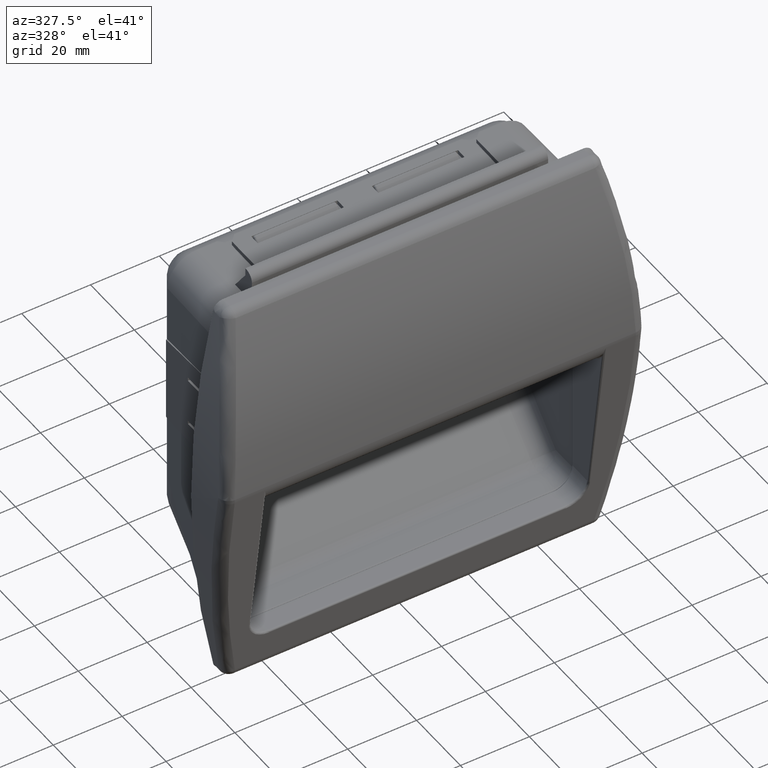
[diagram: clean part render]
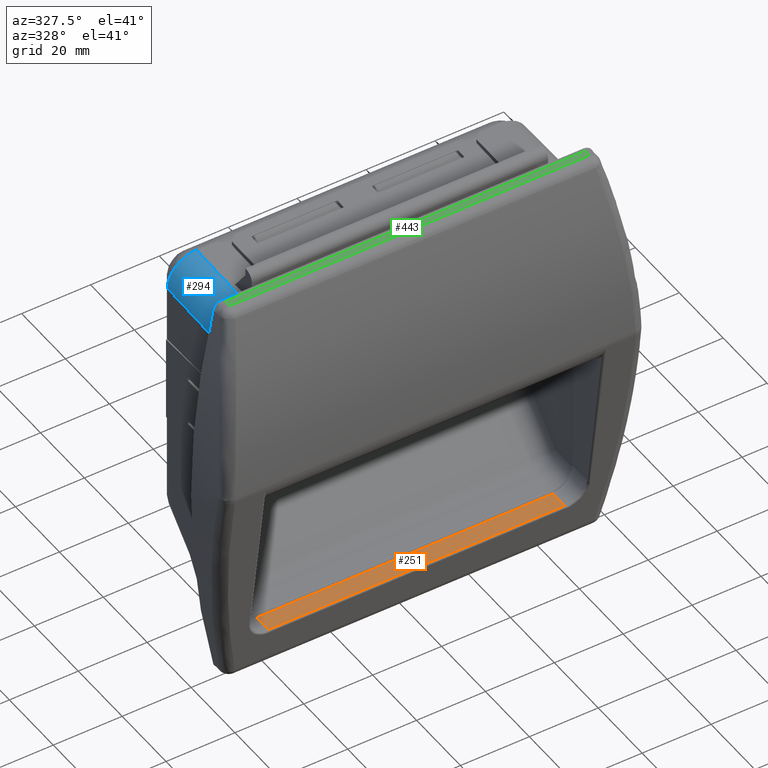
[diagram: same view with three faces highlighted in distinct colors, each labeled with its STEP entity id]
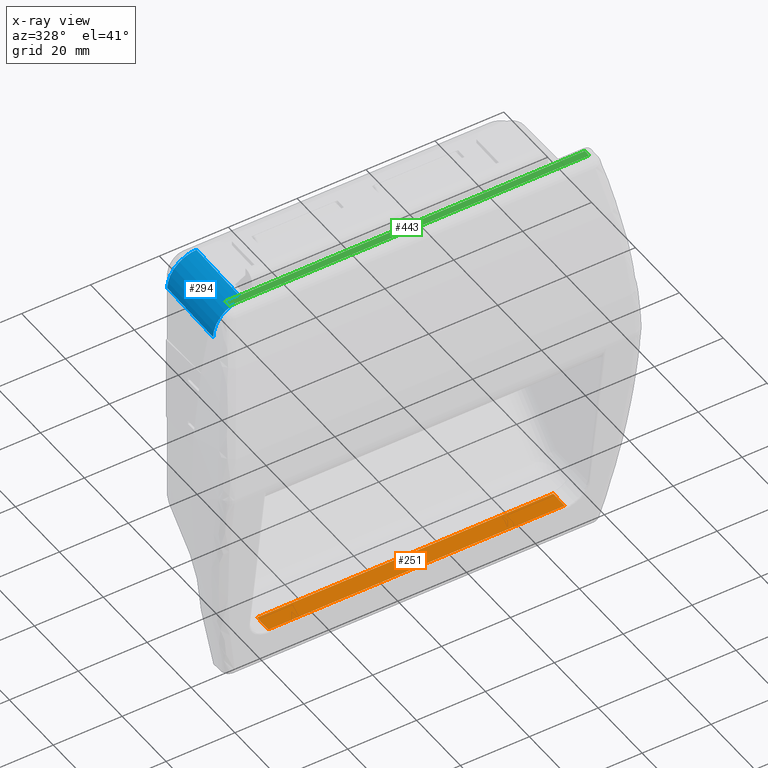
[diagram: x-ray of the same camera — body ghosted, the three highlighted faces saturated]
A machine part, auxiliary view with three faces highlighted in distinct colors.
The next image is the same camera in x-ray (body ghosted, the three faces saturated) — at least one of them is partly hidden behind the body in this view.
Their STEP definitions:

[orange] entity #251 — the highlighted planar face has unit normal (0, -0.0175, 0.9998).
#251=ADVANCED_FACE('',(#1873),#1872,.T.);
#1872=PLANE('',#9851);
#1873=FACE_OUTER_BOUND('',#9852,.T.);
#9848=CARTESIAN_POINT('',(-2.50100344491E+02,-6.71121424564E+00,-4.74978106149E+01));
#9849=DIRECTION('',(0.00000000000E+00,-1.74524064396E-02,9.99847695156E-01));
#9850=DIRECTION('',(1.00000000000E+00,0.00000000000E+00,0.00000000000E+00));
#9851=AXIS2_PLACEMENT_3D('',#9848,#9849,#9850);
#9852=EDGE_LOOP('',(#16798,#16799,#16800,#16801));
#16798=ORIENTED_EDGE('',*,*,#20271,.T.);
#16799=ORIENTED_EDGE('',*,*,#20272,.T.);
#16800=ORIENTED_EDGE('',*,*,#20273,.F.);
#16801=ORIENTED_EDGE('',*,*,#20274,.F.);
#20271=EDGE_CURVE('',#24286,#24080,#24287,.T.);
#20272=EDGE_CURVE('',#24080,#23070,#24293,.T.);
#20273=EDGE_CURVE('',#24299,#23070,#24300,.T.);
#20274=EDGE_CURVE('',#24286,#24299,#24306,.T.);
#23070=VERTEX_POINT('',#34510);
#24080=VERTEX_POINT('',#35331);
#24286=VERTEX_POINT('',#35447);
#24287=LINE('',#35448,#35449);
#24293=LINE('',#35451,#35452);
#24299=VERTEX_POINT('',#35454);
#24300=LINE('',#35455,#35456);
#24306=LINE('',#35458,#35459);
#34510=CARTESIAN_POINT('',(-1.55500344491E+02,-6.19201295058E+00,-4.74887479226E+01));
#35331=CARTESIAN_POINT('',(-2.41500344491E+02,-6.19201295058E+00,-4.74887479226E+01));
#35447=CARTESIAN_POINT('',(-2.41500344491E+02,-1.00000000000E+00,-4.73981209994E+01));
#35448=CARTESIAN_POINT('',(-2.41500344491E+02,-1.00000000000E+00,-4.73981209994E+01));
#35449=VECTOR('',#35450,5.19280383976E+00);
#35450=DIRECTION('',(0.00000000000E+00,-9.99847695156E-01,-1.74524064396E-02));
#35451=CARTESIAN_POINT('',(-2.41500344491E+02,-6.19201295058E+00,-4.74887479226E+01));
#35452=VECTOR('',#35453,8.59999999994E+01);
#35453=DIRECTION('',(1.00000000000E+00,0.00000000000E+00,0.00000000000E+00));
#35454=CARTESIAN_POINT('',(-1.55500344491E+02,-1.00000000000E+00,-4.73981209994E+01));
#35455=CARTESIAN_POINT('',(-1.55500344491E+02,-1.00000000000E+00,-4.73981209994E+01));
#35456=VECTOR('',#35457,5.19280383976E+00);
#35457=DIRECTION('',(0.00000000000E+00,-9.99847695156E-01,-1.74524064396E-02));
#35458=CARTESIAN_POINT('',(-2.41500344491E+02,-1.00000000000E+00,-4.73981209994E+01));
#35459=VECTOR('',#35460,8.59999999994E+01);
#35460=DIRECTION('',(1.00000000000E+00,0.00000000000E+00,0.00000000000E+00));

[blue] entity #294 — the highlighted cylindrical surface (edge-blend (fillet) strip) has radius 8.5 mm, axis along (0.0175, 0.9998, 0).
#294=ADVANCED_FACE('',(#2308),#2307,.T.);
#2307=CYLINDRICAL_SURFACE('',#10071,8.50000000000E+00);
#2308=FACE_OUTER_BOUND('',#10072,.T.);
#10068=CARTESIAN_POINT('',(-2.42473242234E+02,2.50299954308E+01,4.47999999995E+01));
#10069=DIRECTION('',(1.74524064382E-02,9.99847695156E-01,1.45318514433E-15));
#10070=DIRECTION('',(-1.84952100710E-09,3.22849626731E-11,-1.00000000000E+00));
#10071=AXIS2_PLACEMENT_3D('',#10068,#10069,#10070);
#10072=EDGE_LOOP('',(#17037,#17038,#17039,#17040));
#17037=ORIENTED_EDGE('',*,*,#20425,.T.);
#17038=ORIENTED_EDGE('',*,*,#20427,.F.);
#17039=ORIENTED_EDGE('',*,*,#20428,.F.);
#17040=ORIENTED_EDGE('',*,*,#20429,.F.);
#20425=EDGE_CURVE('',#25315,#25308,#25316,.T.);
#20427=EDGE_CURVE('',#25328,#25308,#25329,.T.);
#20428=EDGE_CURVE('',#25335,#25328,#25336,.T.);
#20429=EDGE_CURVE('',#25315,#25335,#25342,.T.);
#25308=VERTEX_POINT('',#36045);
#25315=VERTEX_POINT('',#36049);
#25316=(BOUNDED_CURVE() B_SPLINE_CURVE(2,(#36050,#36051,#36052),.UNSPECIFIED.,.F.,.F.) B_SPLINE_CURVE_WITH_KNOTS((3,3),(-3.14159265359E+00,-1.57079632679E+00),.UNSPECIFIED.) CURVE() GEOMETRIC_REPRESENTATION_ITEM() RATIONAL_B_SPLINE_CURVE((1.00000000000E+00,7.07106781185E-01,1.00000000000E+00)) REPRESENTATION_ITEM('') );
#25328=VERTEX_POINT('',#36056);
#25329=LINE('',#36057,#36058);
#25335=VERTEX_POINT('',#36060);
#25336=(BOUNDED_CURVE() B_SPLINE_CURVE(2,(#36061,#36062,#36063),.UNSPECIFIED.,.F.,.F.) B_SPLINE_CURVE_WITH_KNOTS((3,3),(-3.14159265359E+00,-1.57079632679E+00),.UNSPECIFIED.) CURVE() GEOMETRIC_REPRESENTATION_ITEM() RATIONAL_B_SPLINE_CURVE((1.00000000000E+00,7.07106781187E-01,1.00000000000E+00)) REPRESENTATION_ITEM('') );
#25342=LINE('',#36064,#36065);
#36045=CARTESIAN_POINT('',(-2.42850344491E+02,3.42582158327E+00,5.32999999995E+01));
#36049=CARTESIAN_POINT('',(-2.51350344491E+02,3.50000000091E+00,4.47999999995E+01));
#36050=CARTESIAN_POINT('',(-2.51350344489E+02,3.50000023228E+00,4.47999999995E+01));
#36051=CARTESIAN_POINT('',(-2.51350344489E+02,3.50000023228E+00,5.32999999995E+01));
#36052=CARTESIAN_POINT('',(-2.42850344489E+02,3.42582185606E+00,5.32999999995E+01));
#36056=CARTESIAN_POINT('',(-2.42473765806E+02,2.50000000000E+01,5.32999999995E+01));
#36057=CARTESIAN_POINT('',(-2.42473765806E+02,2.49999999999E+01,5.32999999995E+01));
#36058=VECTOR('',#36059,2.15774647691E+01);
#36059=DIRECTION('',(-1.74524064382E-02,-9.99847695156E-01,0.00000000000E+00));
#36060=CARTESIAN_POINT('',(-2.50975060595E+02,2.50000000000E+01,4.47999999995E+01));
#36061=CARTESIAN_POINT('',(-2.50975060595E+02,2.50000000000E+01,4.47999999995E+01));
#36062=CARTESIAN_POINT('',(-2.50975060595E+02,2.50000000000E+01,5.32999999995E+01));
#36063=CARTESIAN_POINT('',(-2.42473765806E+02,2.50000000000E+01,5.32999999995E+01));
#36064=CARTESIAN_POINT('',(-2.51350344491E+02,3.50000000091E+00,4.47999999995E+01));
#36065=VECTOR('',#36066,2.15032750520E+01);
#36066=DIRECTION('',(1.74524064382E-02,9.99847695156E-01,0.00000000000E+00));

[green] entity #443 — the highlighted planar face has unit normal (0, -0.0175, 0.9998).
#443=ADVANCED_FACE('',(#3801),#3800,.T.);
#3800=PLANE('',#11014);
#3801=FACE_OUTER_BOUND('',#11015,.T.);
#11011=CARTESIAN_POINT('',(-2.60713203265E+02,-8.05664654348E-01,5.95033921361E+01));
#11012=DIRECTION('',(0.00000000000E+00,-1.74524064062E-02,9.99847695157E-01));
#11013=DIRECTION('',(0.00000000000E+00,-9.99847695157E-01,-1.74524064062E-02));
#11014=AXIS2_PLACEMENT_3D('',#11011,#11012,#11013);
#11015=EDGE_LOOP('',(#17796,#17797,#17798,#17799));
#17796=ORIENTED_EDGE('',*,*,#20154,.T.);
#17797=ORIENTED_EDGE('',*,*,#20233,.T.);
#17798=ORIENTED_EDGE('',*,*,#20717,.F.);
#17799=ORIENTED_EDGE('',*,*,#20726,.F.);
#20154=EDGE_CURVE('',#23516,#23509,#23517,.T.);
#20233=EDGE_CURVE('',#23509,#23084,#24043,.T.);
#20717=EDGE_CURVE('',#27202,#23084,#27209,.T.);
#20726=EDGE_CURVE('',#23516,#27202,#27264,.T.);
#23084=VERTEX_POINT('',#34519);
#23509=VERTEX_POINT('',#34858);
#23516=VERTEX_POINT('',#34863);
#23517=LINE('',#34864,#34865);
#24043=LINE('',#35302,#35303);
#27202=VERTEX_POINT('',#37196);
#27209=LINE('',#37225,#37226);
#27264=LINE('',#37260,#37261);
#34519=CARTESIAN_POINT('',(-1.46314614773E+02,-2.94335345652E+00,5.94660786393E+01));
#34858=CARTESIAN_POINT('',(-2.50686074209E+02,-2.94335345652E+00,5.94660786393E+01));
#34863=CARTESIAN_POINT('',(-2.50713203265E+02,-1.00000000000E+00,5.95000000000E+01));
#34864=CARTESIAN_POINT('',(-2.50713203265E+02,-1.00000000000E+00,5.95000000000E+01));
#34865=VECTOR('',#34866,1.94383880539E+00);
#34866=DIRECTION('',(1.39564329422E-02,-9.99750314238E-01,-1.74507066159E-02));
#35302=CARTESIAN_POINT('',(-2.50686074209E+02,-2.94335345652E+00,5.94660786393E+01));
#35303=VECTOR('',#35304,1.04371459436E+02);
#35304=DIRECTION('',(1.00000000000E+00,0.00000000000E+00,0.00000000000E+00));
#37196=CARTESIAN_POINT('',(-1.46287485717E+02,-1.00000000000E+00,5.95000000000E+01));
#37225=CARTESIAN_POINT('',(-1.46287485717E+02,-1.00000000000E+00,5.95000000000E+01));
#37226=VECTOR('',#37227,1.94383880539E+00);
#37227=DIRECTION('',(-1.39564329417E-02,-9.99750314238E-01,-1.74507066159E-02));
#37260=CARTESIAN_POINT('',(-2.50713203265E+02,-1.00000000000E+00,5.95000000000E+01));
#37261=VECTOR('',#37262,1.04425717548E+02);
#37262=DIRECTION('',(1.00000000000E+00,0.00000000000E+00,0.00000000000E+00));